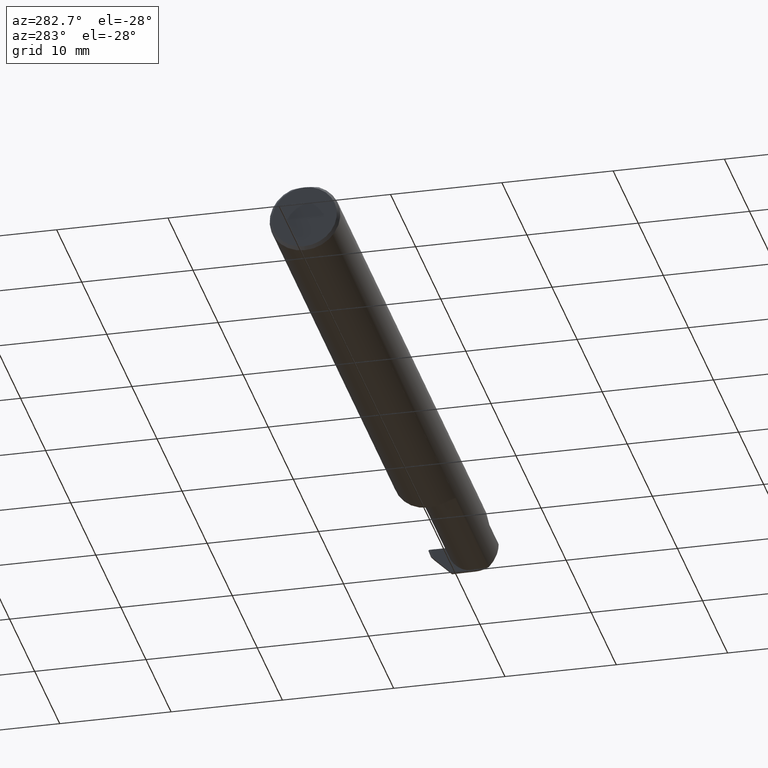
[diagram: clean part render]
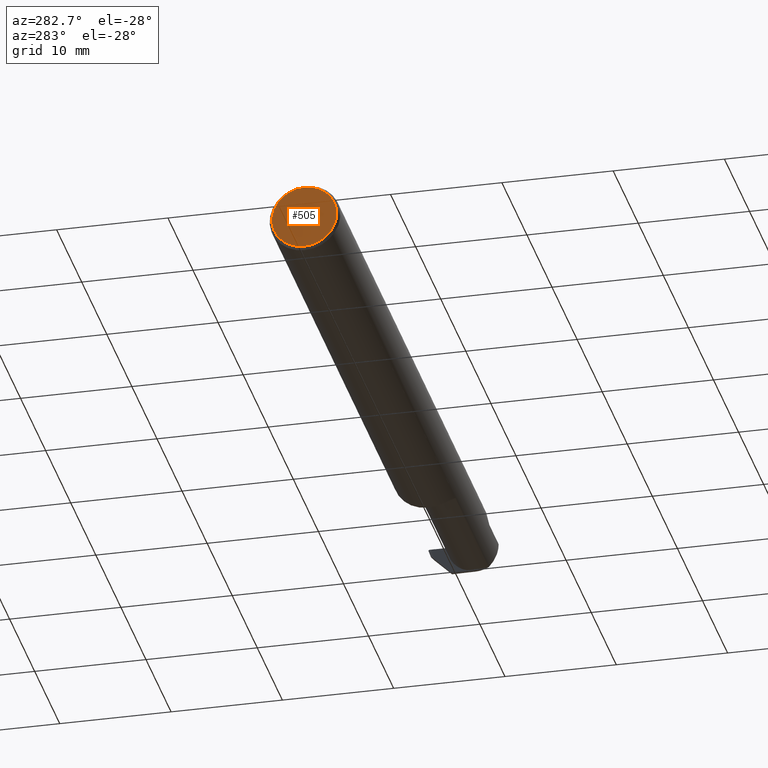
[diagram: same view with one face highlighted and labeled with its STEP entity id]
A machine part, auxiliary view. The second image highlights one B-rep face of the part: STEP entity #505.
In plain terms, the highlighted planar face has unit normal (1, 0, 0).
Its self-contained STEP definition (entity closure, byte-faithful):
#44 = CARTESIAN_POINT ( 'NONE',  ( 0.000000000000000000, 3.414809992080329023E-17, 0.1149999999999999217 ) ) ;
#77 = EDGE_CURVE ( 'NONE', #262, #307, #184, .T. ) ;
#126 = PLANE ( 'NONE',  #573 ) ;
#170 = EDGE_LOOP ( 'NONE', ( #353, #297 ) ) ;
#184 = CIRCLE ( 'NONE', #677, 0.1149999999999997274 ) ;
#187 = DIRECTION ( 'NONE',  ( 0.000000000000000000, 0.000000000000000000, -1.000000000000000000 ) ) ;
#227 = CARTESIAN_POINT ( 'NONE',  ( 0.000000000000000000, 0.000000000000000000, 0.000000000000000000 ) ) ;
#241 = DIRECTION ( 'NONE',  ( 1.000000000000000000, 0.000000000000000000, 0.000000000000000000 ) ) ;
#262 = VERTEX_POINT ( 'NONE', #302 ) ;
#266 = CIRCLE ( 'NONE', #547, 0.1149999999999997274 ) ;
#286 = CARTESIAN_POINT ( 'NONE',  ( 0.000000000000000000, 0.000000000000000000, 0.000000000000000000 ) ) ;
#288 = CARTESIAN_POINT ( 'NONE',  ( 0.000000000000000000, 0.000000000000000000, 0.000000000000000000 ) ) ;
#290 = DIRECTION ( 'NONE',  ( 0.000000000000000000, 0.000000000000000000, -1.000000000000000000 ) ) ;
#293 = DIRECTION ( 'NONE',  ( -1.000000000000000000, -0.000000000000000000, -0.000000000000000000 ) ) ;
#297 = ORIENTED_EDGE ( 'NONE', *, *, #77, .T. ) ;
#302 = CARTESIAN_POINT ( 'NONE',  ( 0.000000000000000000, 0.000000000000000000, -0.1149999999999997274 ) ) ;
#307 = VERTEX_POINT ( 'NONE', #44 ) ;
#353 = ORIENTED_EDGE ( 'NONE', *, *, #526, .T. ) ;
#403 = DIRECTION ( 'NONE',  ( -1.000000000000000000, -0.000000000000000000, -0.000000000000000000 ) ) ;
#498 = FACE_OUTER_BOUND ( 'NONE', #170, .T. ) ;
#505 = ADVANCED_FACE ( 'NONE', ( #498 ), #126, .F. ) ;
#526 = EDGE_CURVE ( 'NONE', #307, #262, #266, .T. ) ;
#547 = AXIS2_PLACEMENT_3D ( 'NONE', #286, #293, #187 ) ;
#573 = AXIS2_PLACEMENT_3D ( 'NONE', #227, #241, #290 ) ;
#662 = DIRECTION ( 'NONE',  ( 0.000000000000000000, 0.000000000000000000, -1.000000000000000000 ) ) ;
#677 = AXIS2_PLACEMENT_3D ( 'NONE', #288, #403, #662 ) ;